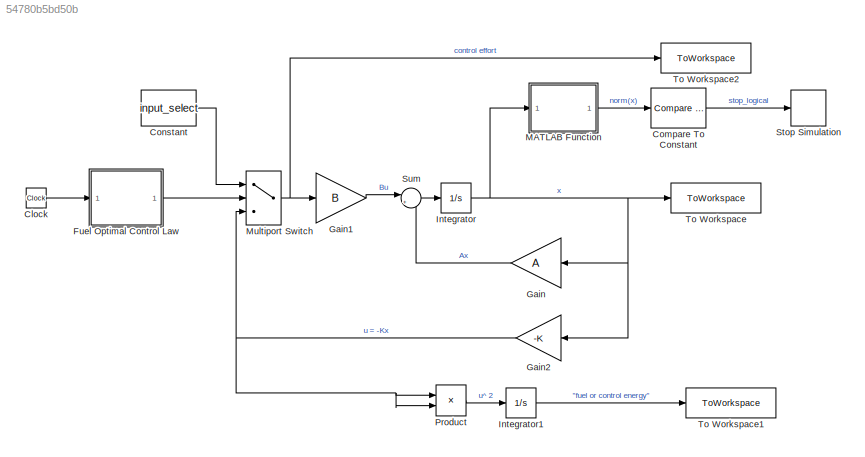
MODEL slx_54780b5bd50b
KIND model
CONFIG AbsTol = auto
CONFIG EnableMultiTasking = off
CONFIG FixedStep = auto
CONFIG MaxStep = auto
CONFIG MinStep = auto
CONFIG RelTol = 1e-9
CONFIG SampleTimeConstraint = Unconstrained
CONFIG SolverName = VariableStepAuto
CONFIG StartTime = 0.0
CONFIG StopTime = tstop
BLOCK [Clock] Clock
BLOCK [Reference] Compare To Constant  REF=simulink/Logic and Bit
Operations/Compare
To Constant
  Ports = [1, 1]
  SourceBlock = simulink/Logic and Bit\nOperations/Compare\nTo Constant
  SourceProductBaseCode = SL
  SourceType = Compare To Constant
BLOCK [Constant] Constant
  Value = input_select
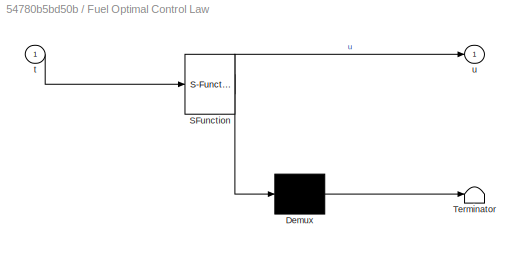
BLOCK [SubSystem] Fuel Optimal Control Law
  ErrorFcn = Stateflow.Translate.translate
  PermitHierarchicalResolution = ExplicitOnly
  Ports = [1, 1]
  RequestExecContextInheritance = off
  SFBlockType = MATLAB Function
  TreatAsAtomicUnit = on
BLOCK [Demux] Fuel Optimal Control Law/ Demux 
  Outputs = 1
  Ports = [1, 1]
BLOCK [S-Function] Fuel Optimal Control Law/ SFunction 
  EnableBusSupport = on
  FunctionName = sf_sfun
  Parameters = A,B,Wc_sim,t_end,x0
  PortCounts = [1 2]
  Ports = [1, 2]
  SFcnIsStateOwnerBlock = off
  SFunctionDeploymentMode = off
  Tag = Stateflow S-Function 1
BLOCK [Terminator] Fuel Optimal Control Law/ Terminator 
BLOCK [Inport] Fuel Optimal Control Law/t
BLOCK [Outport] Fuel Optimal Control Law/u
BLOCK [Gain] Gain
  Gain = A
  Multiplication = Matrix(K*u)
  NameLocation = top
BLOCK [Gain] Gain1
  Gain = B
  Multiplication = Matrix(K*u)
BLOCK [Gain] Gain2
  Gain = -K
  Multiplication = Matrix(K*u)
  NameLocation = top
BLOCK [Integrator] Integrator
  InitialCondition = x0
  Ports = [1, 1]
BLOCK [Integrator] Integrator1
  Ports = [1, 1]
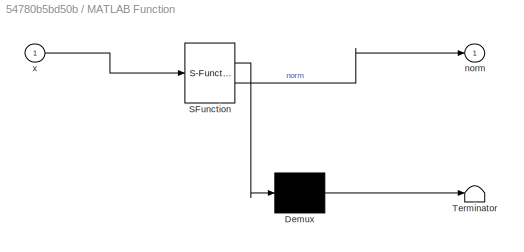
BLOCK [SubSystem] MATLAB Function
  ErrorFcn = Stateflow.Translate.translate
  PermitHierarchicalResolution = ExplicitOnly
  Ports = [1, 1]
  RequestExecContextInheritance = off
  SFBlockType = MATLAB Function
  TreatAsAtomicUnit = on
BLOCK [Demux] MATLAB Function/ Demux 
  Outputs = 1
  Ports = [1, 1]
BLOCK [S-Function] MATLAB Function/ SFunction 
  EnableBusSupport = on
  FunctionName = sf_sfun
  PortCounts = [1 2]
  Ports = [1, 2]
  SFcnIsStateOwnerBlock = off
  SFunctionDeploymentMode = off
  Tag = Stateflow S-Function 2
BLOCK [Terminator] MATLAB Function/ Terminator 
BLOCK [Outport] MATLAB Function/norm
BLOCK [Inport] MATLAB Function/x
BLOCK [MultiPortSwitch] Multiport Switch
  InputSameDT = off
  Inputs = 2
  Ports = [3, 1]
  SaturateOnIntegerOverflow = off
BLOCK [Product] Product
  Ports = [2, 1]
BLOCK [Stop] Stop Simulation
BLOCK [Sum] Sum
  Inputs = |++
  Ports = [2, 1]
BLOCK [ToWorkspace] To Workspace
  FixptAsFi = on
  MaxDataPoints = inf
  Ports = [1]
  SampleTime = -1
  VariableName = x
BLOCK [ToWorkspace] To Workspace1
  FixptAsFi = on
  MaxDataPoints = inf
  Ports = [1]
  SampleTime = -1
  VariableName = intUsqrd
BLOCK [ToWorkspace] To Workspace2
  FixptAsFi = on
  MaxDataPoints = inf
  Ports = [1]
  SampleTime = -1
  VariableName = u
LINE Clock:1 -> Fuel Optimal Control Law:1
LINE Compare To Constant:1 -> Stop Simulation:1
LINE Constant:1 -> Multiport Switch:1
LINE Fuel Optimal Control Law:1 -> Multiport Switch:2
LINE Gain1:1 -> Sum:1
NET Gain2:1 -> Multiport Switch:3, Product:1, Product:2
LINE Gain:1 -> Sum:2
LINE Integrator1:1 -> To Workspace1:1
NET Integrator:1 -> Gain2:1, Gain:1, MATLAB Function:1, To Workspace:1
LINE MATLAB Function:1 -> Compare To Constant:1
NET Multiport Switch:1 -> Gain1:1, To Workspace2:1
LINE Product:1 -> Integrator1:1
LINE Sum:1 -> Integrator:1
note: NET lines group one-source signal fan-out (src -> all destinations, sorted); 1:1 wires keep LINE
CHART Fuel Optimal Control Law states=1 transitions=1
  STATE_LABEL 'eML_blk_kernel()'
  STATE_LABEL "SCRIPT:\nfunction u = fuel_opt(t,A,B,x0,t_end, Wc_sim)\n\n    u = -(B')*expm(A'*(t_end-t))*(Wc_sim\\expm(A*t_end)*x0);\n\n\n"
CHART MATLAB Function states=1 transitions=1
  STATE_LABEL 'eML_blk_kernel()'
  STATE_LABEL "SCRIPT:\nfunction norm = norm(x)\n\nx = [x(1);x(2);x(3);x(4)];\nnorm = sqrt(x'*x);\n\n"
CHART  states=0 transitions=0
CHART  states=0 transitions=0
